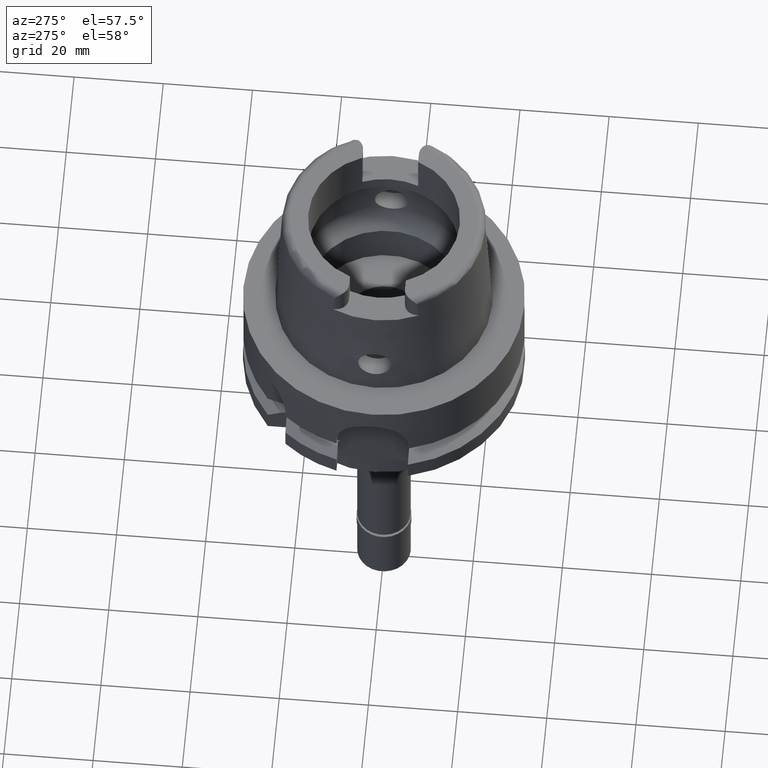
[diagram: clean part render]
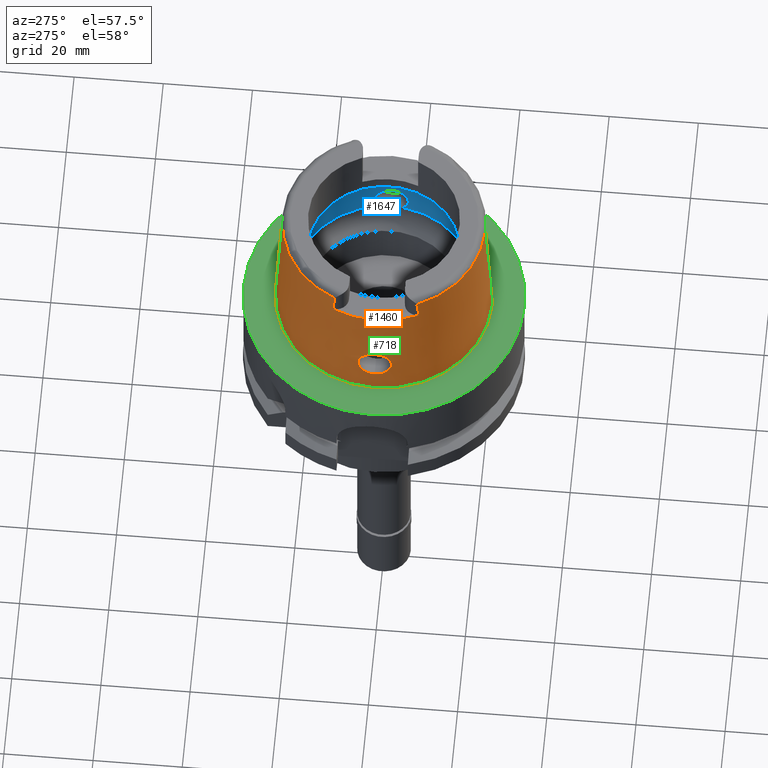
[diagram: same view with three faces highlighted in distinct colors, each labeled with its STEP entity id]
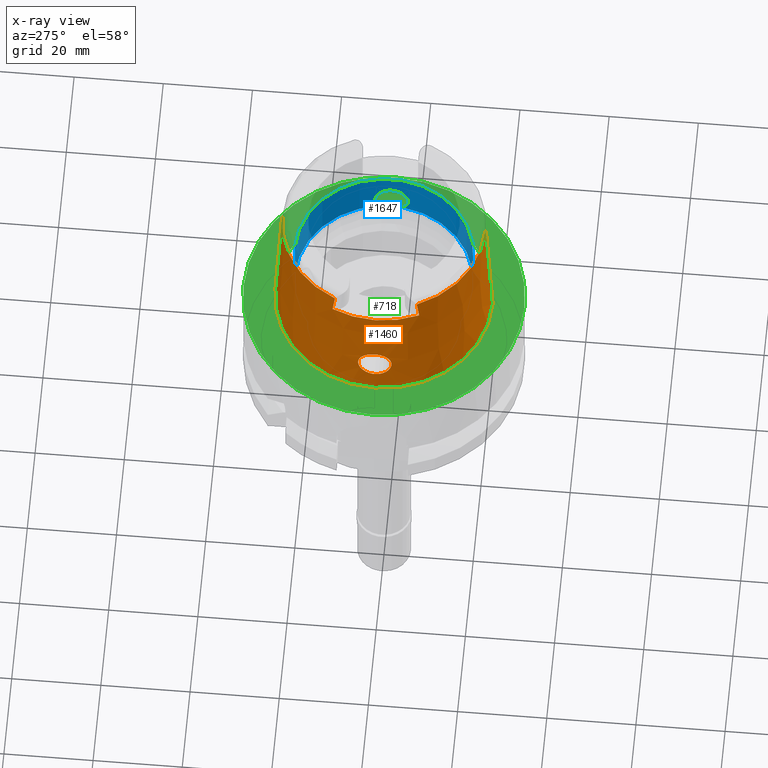
[diagram: x-ray of the same camera — body ghosted, the three highlighted faces saturated]
A machine part, auxiliary view with three faces highlighted in distinct colors.
The next image is the same camera in x-ray (body ghosted, the three faces saturated) — at least one of them is partly hidden behind the body in this view.
Their STEP definitions:

[orange] entity #1460 — the highlighted conical surface has half-angle 2.862 deg.
#15 = CARTESIAN_POINT ( 'NONE',  ( -23.75271649875262980, -3.178882622494953569, 7.007071754416051235 ) ) ;
#28 = FACE_OUTER_BOUND ( 'NONE', #3045, .T. ) ;
#60 = CARTESIAN_POINT ( 'NONE',  ( -23.57131677630555444, -3.749725007079726335, 8.946377467050307786 ) ) ;
#72 = CARTESIAN_POINT ( 'NONE',  ( -0.002484151076649000062, -22.79336396291000000, 30.43239979383999838 ) ) ;
#87 = CARTESIAN_POINT ( 'NONE',  ( -23.63967575691929923, -1.640546789802008298, 12.37312447946505500 ) ) ;
#114 = B_SPLINE_CURVE_WITH_KNOTS ( 'NONE', 3,
 ( #2681, #2222, #3911, #2653, #4353, #610, #2244, #3932, #1437, #1840, #3524, #3115, #4800, #2816, #3192, #4872, #4542, #4987, #4456, #4066, #1942, #1913, #3244, #253, #1995, #5408, #4963, #4040, #4930, #1105, #2392, #4481, #2755, #4092, #4514, #1187, #683, #1968, #336, #5303, #3685, #2844, #708, #787, #312, #2729, #3600, #367, #5350, #5379, #3656, #3277, #3629, #3309, #2335, #1512, #1593, #1561, #1621, #277, #2311, #764, #5328, #1534, #2422, #4123, #3216, #2024, #1152, #4430, #4900, #3713, #4012, #1128, #2785, #737, #2364, #1755, #842, #403, #3827, #2082, #2513, #2054, #1698, #1295, #869, #3391, #2106, #2955, #3415, #2866, #2931 ),
 .UNSPECIFIED., .F., .F.,
 ( 4, 2, 2, 1, 1, 1, 2, 2, 2, 2, 1, 1, 2, 2, 2, 1, 1, 2, 2, 2, 2, 1, 1, 1, 2, 2, 2, 2, 1, 2, 2, 2, 2, 1, 1, 1, 2, 2, 2, 2, 1, 1, 2, 2, 2, 1, 1, 2, 2, 2, 2, 1, 1, 1, 2, 2, 4 ),
 ( 0.0000000000000000000, 0.06250000000000731359, 0.09375000000001096345, 0.1093750000000127259, 0.1171875000000135031, 0.1210937500000139055, 0.1230468750000140998, 0.1250000000000142664, 0.1562500000000175970, 0.1718750000000191513, 0.1796875000000198175, 0.1835937500000200950, 0.1855468750000202338, 0.1875000000000203726, 0.2187500000000246192, 0.2343750000000265898, 0.2421875000000277556, 0.2460937500000281997, 0.2500000000000285882, 0.3125000000000340283, 0.3437500000000369149, 0.3593750000000383582, 0.3671875000000390243, 0.3710937500000393574, 0.3730468750000395239, 0.3750000000000396905, 0.4375000000000392464, 0.4687500000000388023, 0.4843750000000385803, 0.4921875000000387468, 0.5000000000000388578, 0.5625000000000424105, 0.5937500000000444089, 0.6093750000000451861, 0.6171875000000457412, 0.6210937500000459632, 0.6230468750000459632, 0.6250000000000459632, 0.6562500000000431877, 0.6718750000000418554, 0.6796875000000410783, 0.6835937500000408562, 0.6855468750000405231, 0.6875000000000401901, 0.7187500000000363043, 0.7343750000000343059, 0.7421875000000333067, 0.7460937500000327516, 0.7500000000000321965, 0.8125000000000226485, 0.8437500000000177636, 0.8593750000000153211, 0.8671875000000140998, 0.8710937500000135447, 0.8730468750000134337, 0.8750000000000133227, 1.000000000000000000 ),
 .UNSPECIFIED. ) ;
#202 = CARTESIAN_POINT ( 'NONE',  ( 0.0000000000000000000, 0.0000000000000000000, 26.00000000000000000 ) ) ;
#253 = CARTESIAN_POINT ( 'NONE',  ( -23.60608593087012608, 2.286597066141284440, 11.97474614694910677 ) ) ;
#277 = CARTESIAN_POINT ( 'NONE',  ( -23.68191438680150540, 3.475051656382814880, 7.590537591193768918 ) ) ;
#287 = CARTESIAN_POINT ( 'NONE',  ( -23.86626205603262818, -2.552776084607674356, 6.252657690147469083 ) ) ;
#300 = VERTEX_POINT ( 'NONE', #1866 ) ;
#312 = CARTESIAN_POINT ( 'NONE',  ( -23.54893034955832931, 3.720957382204576280, 9.481047861363990137 ) ) ;
#317 = CARTESIAN_POINT ( 'NONE',  ( -23.96237138325590266, -1.797033626240345461, 5.708055484391374890 ) ) ;
#336 = CARTESIAN_POINT ( 'NONE',  ( -23.53993802634269983, 3.455863299354316354, 10.45586886919575420 ) ) ;
#341 = CARTESIAN_POINT ( 'NONE',  ( -23.83840625631509624, -2.728019529906752005, 6.424025290122263421 ) ) ;
#348 = ORIENTED_EDGE ( 'NONE', *, *, #1750, .T. ) ;
#367 = CARTESIAN_POINT ( 'NONE',  ( -23.56263922647588060, 3.748100313236157444, 9.122984401225725293 ) ) ;
#373 = CARTESIAN_POINT ( 'NONE',  ( 0.0000000000000000000, 0.0000000000000000000, 30.43239979383999838 ) ) ;
#384 = B_SPLINE_CURVE_WITH_KNOTS ( 'NONE', 3,
 ( #3927, #4443, #1809, #4732 ),
 .UNSPECIFIED., .F., .F.,
 ( 4, 4 ),
 ( 0.0000000000000000000, 1.000000000000000000 ),
 .UNSPECIFIED. ) ;
#403 = CARTESIAN_POINT ( 'NONE',  ( -23.88277645787235670, 2.457004479624945059, 6.153120659141200655 ) ) ;
#409 = CARTESIAN_POINT ( 'NONE',  ( -23.63420283313325854, -3.637675456476909375, 8.056210905453200510 ) ) ;
#435 = CARTESIAN_POINT ( 'NONE',  ( -23.57815765933428409, -2.743201932923720943, 11.55725509245077731 ) ) ;
#498 = CARTESIAN_POINT ( 'NONE',  ( -23.54084231469584054, -3.656277190900311780, 9.842103161240823184 ) ) ;
#523 = CARTESIAN_POINT ( 'NONE',  ( -23.62274801634107391, -1.989716034697639246, 12.18083022161169282 ) ) ;
#550 = AXIS2_PLACEMENT_3D ( 'NONE', #202, #2732, #4432 ) ;
#610 = CARTESIAN_POINT ( 'NONE',  ( -23.65921503543091120, 1.129946291061730390, 12.57628079854242209 ) ) ;
#652 = VERTEX_POINT ( 'NONE', #2384 ) ;
#666 = EDGE_CURVE ( 'NONE', #3828, #5222, #3882, .T. ) ;
#683 = CARTESIAN_POINT ( 'NONE',  ( -23.54070526107432926, 3.429138922167620507, 10.51815876223671431 ) ) ;
#708 = CARTESIAN_POINT ( 'NONE',  ( -23.53848312545616039, 3.633204726379911431, 9.960128565135434542 ) ) ;
#714 = CARTESIAN_POINT ( 'NONE',  ( -23.88992228079224489, -2.392550152549585807, 6.111750137155390838 ) ) ;
#737 = CARTESIAN_POINT ( 'NONE',  ( -23.83745725767525414, 2.730878181249785541, 6.429694411086224193 ) ) ;
#745 = DIRECTION ( 'NONE',  ( 0.0000000000000000000, -1.000000000000000000, 0.0000000000000000000 ) ) ;
#764 = CARTESIAN_POINT ( 'NONE',  ( -23.69425830403843847, 3.429264908440908588, 7.478993167382545160 ) ) ;
#768 = CARTESIAN_POINT ( 'NONE',  ( -23.99874281242712470, -1.392648645723933765, 5.518150044375990326 ) ) ;
#774 = DIRECTION ( 'NONE',  ( 0.0000000000000000000, 1.000000000000000000, 0.0000000000000000000 ) ) ;
#787 = CARTESIAN_POINT ( 'NONE',  ( -23.54564729109382526, 3.703537863472409875, 9.600989313691028926 ) ) ;
#820 = CARTESIAN_POINT ( 'NONE',  ( -23.93378507945704925, -2.055046189300160808, 5.863226044967373873 ) ) ;
#842 = CARTESIAN_POINT ( 'NONE',  ( -23.84797676354205009, 2.667983411937318028, 6.364725162220019605 ) ) ;
#847 = CARTESIAN_POINT ( 'NONE',  ( -23.70836825227102906, -3.372634424744542336, 7.358439724445772434 ) ) ;
#869 = CARTESIAN_POINT ( 'NONE',  ( -23.99224149937913708, 1.473275722583577529, 5.551482136560391467 ) ) ;
#876 = CARTESIAN_POINT ( 'NONE',  ( -23.64687963687600458, -1.469572237821764604, 12.45021093584766092 ) ) ;
#900 = CARTESIAN_POINT ( 'NONE',  ( -20.86998041701999895, 9.160368181295998724, 30.43620438453000077 ) ) ;
#904 = CARTESIAN_POINT ( 'NONE',  ( -23.54162950234329088, -3.388279096717512928, 10.61919203893054409 ) ) ;
#933 = CARTESIAN_POINT ( 'NONE',  ( -23.61134330753656130, -2.189585887287681221, 12.04499218410015260 ) ) ;
#954 = CARTESIAN_POINT ( 'NONE',  ( -23.65773117235350753, -3.565473850469243811, 7.807593778809729379 ) ) ;
#959 = CARTESIAN_POINT ( 'NONE',  ( 0.0000000000000000000, -24.31503482328999866, -8.348877145181000479E-13 ) ) ;
#992 = CARTESIAN_POINT ( 'NONE',  ( -20.86998041701999895, 9.160368181295998724, 30.43620438453000077 ) ) ;
#996 = VERTEX_POINT ( 'NONE', #3266 ) ;
#1097 = B_SPLINE_CURVE_WITH_KNOTS ( 'NONE', 3,
 ( #1518, #1567, #1110, #4936, #3198, #5388, #5414, #1160, #2459, #768, #3315, #4074, #5334, #317, #2872, #4994, #3287, #1973, #4576, #820, #4969, #4462, #2371, #714, #3636, #2342, #287, #1541, #4488, #2824, #4521, #341, #1302, #3451, #1704, #4603, #2600, #15, #5436, #4715, #847, #4630, #1732, #4248, #954, #409, #5148, #2061, #1353, #4223, #2964, #60, #2997, #3365, #2088, #498, #2492, #4197, #2161, #3751, #3777, #1652, #5117, #5023, #904, #3338, #1326, #3030, #2576, #1677, #2546, #435, #3423, #2111, #5060, #4688, #2139, #4273, #1244, #5087, #933, #2907, #523, #3858, #1273, #87, #3396, #2934, #876, #2519, #4657, #1763 ),
 .UNSPECIFIED., .F., .F.,
 ( 4, 2, 2, 1, 1, 2, 2, 2, 2, 1, 1, 2, 2, 2, 2, 1, 1, 2, 2, 2, 2, 2, 2, 1, 2, 2, 2, 2, 1, 2, 2, 2, 2, 1, 1, 1, 2, 2, 2, 2, 2, 1, 1, 2, 2, 2, 2, 2, 2, 1, 2, 2, 4 ),
 ( 0.0000000000000000000, 0.06249999999999901468, 0.09374999999999852895, 0.1093749999999981959, 0.1171874999999980294, 0.1210937499999979045, 0.1249999999999977934, 0.1562499999999968636, 0.1718749999999963363, 0.1796874999999961975, 0.1835937499999962252, 0.1855468749999962530, 0.1874999999999962808, 0.2187499999999959199, 0.2343749999999957256, 0.2421874999999955591, 0.2460937499999956424, 0.2480468749999956424, 0.2499999999999956424, 0.2812499999999956146, 0.2968749999999955591, 0.3124999999999954481, 0.3437499999999954481, 0.3593749999999955591, 0.3671874999999955036, 0.3749999999999953926, 0.4374999999999954481, 0.4687499999999951705, 0.4843749999999950040, 0.4921874999999949485, 0.4999999999999948930, 0.5624999999999953371, 0.5937499999999955591, 0.6093749999999955591, 0.6171874999999955591, 0.6210937499999955591, 0.6230468749999955591, 0.6249999999999954481, 0.6874999999999881206, 0.7187499999999846789, 0.7343749999999829026, 0.7421874999999820144, 0.7460937499999816813, 0.7480468749999815703, 0.7499999999999814593, 0.7812499999999832356, 0.7968749999999843459, 0.8124999999999854561, 0.8437499999999877875, 0.8593749999999891198, 0.8671874999999896749, 0.8749999999999902300, 1.000000000000000000 ),
 .UNSPECIFIED. ) ;
#1105 = CARTESIAN_POINT ( 'NONE',  ( -23.58442557356728031, 2.642587259092124885, 11.66073881207936225 ) ) ;
#1110 = CARTESIAN_POINT ( 'NONE',  ( -24.04785089638647477, -0.4709048452987371625, 5.271751802897515660 ) ) ;
#1111 = EDGE_LOOP ( 'NONE', ( #4087, #1689 ) ) ;
#1128 = CARTESIAN_POINT ( 'NONE',  ( -23.81419107511943167, 2.864606967190712616, 6.579186969411240149 ) ) ;
#1152 = CARTESIAN_POINT ( 'NONE',  ( -23.76035813228541116, 3.142852042474883145, 6.954258488513135106 ) ) ;
#1160 = CARTESIAN_POINT ( 'NONE',  ( -24.00434942521088999, -1.319161821155087511, 5.489437340426846390 ) ) ;
#1178 = DIRECTION ( 'NONE',  ( -0.9156174466529973799, 0.4020506079893991225, 0.0000000000000000000 ) ) ;
#1187 = CARTESIAN_POINT ( 'NONE',  ( -23.54202911436889067, 3.389495675048942225, 10.60598604923514721 ) ) ;
#1232 = VERTEX_POINT ( 'NONE', #2565 ) ;
#1244 = CARTESIAN_POINT ( 'NONE',  ( -23.60282231831005362, -2.336336238666679499, 11.93390469152244115 ) ) ;
#1273 = CARTESIAN_POINT ( 'NONE',  ( -23.63588957459349160, -1.723551570150658740, 12.33101407868216626 ) ) ;
#1295 = CARTESIAN_POINT ( 'NONE',  ( -23.98860588324491161, 1.516759319374654691, 5.570243200990868893 ) ) ;
#1298 = CARTESIAN_POINT ( 'NONE',  ( -20.87000000000000099, 9.385803121562608098, 28.62353940569335009 ) ) ;
#1302 = CARTESIAN_POINT ( 'NONE',  ( -23.82423750658195871, -2.811376487817902614, 6.515266914707638080 ) ) ;
#1326 = CARTESIAN_POINT ( 'NONE',  ( -23.55720861380844866, -3.090776204992781828, 11.12709627958622072 ) ) ;
#1353 = CARTESIAN_POINT ( 'NONE',  ( -23.58466910641119441, -3.739696144484719209, 8.715997387690439524 ) ) ;
#1400 = CARTESIAN_POINT ( 'NONE',  ( 0.002484151076652000266, 22.79336396291000000, 30.43239979383999838 ) ) ;
#1411 = EDGE_CURVE ( 'NONE', #996, #1888, #4754, .T. ) ;
#1437 = CARTESIAN_POINT ( 'NONE',  ( -23.65033733337030242, 1.382311900821711736, 12.48599880202366741 ) ) ;
#1460 = ADVANCED_FACE ( 'NONE', ( #28, #4282 ), #4511, .T. ) ;
#1512 = CARTESIAN_POINT ( 'NONE',  ( -23.66072205122484107, 3.550429004970484748, 7.789890487783913464 ) ) ;
#1518 = CARTESIAN_POINT ( 'NONE',  ( -24.05252611746999847, 7.219293415727999012E-14, 5.250000000000000000 ) ) ;
#1534 = CARTESIAN_POINT ( 'NONE',  ( -23.72651505830365437, 3.296925417204575659, 7.212107131273609362 ) ) ;
#1541 = CARTESIAN_POINT ( 'NONE',  ( -23.85944572764263683, -2.596507396760212583, 6.294232208029381326 ) ) ;
#1546 = CARTESIAN_POINT ( 'NONE',  ( 0.0000000000000000000, 0.0000000000000000000, -1.534772309241999973E-12 ) ) ;
#1561 = CARTESIAN_POINT ( 'NONE',  ( -23.67772318265726028, 3.490410505361893012, 7.628865223536131168 ) ) ;
#1567 = CARTESIAN_POINT ( 'NONE',  ( -24.05252611747000202, -0.2328530991775683567, 5.249999999999996447 ) ) ;
#1593 = CARTESIAN_POINT ( 'NONE',  ( -23.67194768371611957, 3.511222110099463833, 7.682537935400348239 ) ) ;
#1621 = CARTESIAN_POINT ( 'NONE',  ( -23.68023325706679927, 3.481230152347519091, 7.605867681045560325 ) ) ;
#1652 = CARTESIAN_POINT ( 'NONE',  ( -23.53942262640137528, -3.476502138520435992, 10.40587873757411508 ) ) ;
#1677 = CARTESIAN_POINT ( 'NONE',  ( -23.57170940620293109, -2.848131144423408312, 11.44038702921787376 ) ) ;
#1689 = ORIENTED_EDGE ( 'NONE', *, *, #2008, .F. ) ;
#1698 = CARTESIAN_POINT ( 'NONE',  ( -23.98098753358466340, 1.604379437199070724, 5.609746666168613949 ) ) ;
#1704 = CARTESIAN_POINT ( 'NONE',  ( -23.79567430288091145, -2.967514793159313768, 6.706495036473427263 ) ) ;
#1732 = CARTESIAN_POINT ( 'NONE',  ( -23.69184256327779536, -3.437786402261809204, 7.501628162517948617 ) ) ;
#1750 = EDGE_CURVE ( 'NONE', #300, #1888, #2373, .T. ) ;
#1755 = CARTESIAN_POINT ( 'NONE',  ( -23.84643091849389762, 2.677292862273357166, 6.374197078993514509 ) ) ;
#1763 = CARTESIAN_POINT ( 'NONE',  ( -23.67751368057999883, 0.0000000000000000000, 12.75000000000000000 ) ) ;
#1809 = CARTESIAN_POINT ( 'NONE',  ( -20.87000000000000099, -9.342523104418118507, 28.99774287380602900 ) ) ;
#1840 = CARTESIAN_POINT ( 'NONE',  ( -23.64944384483764139, 1.405224240284970838, 12.47676757693871075 ) ) ;
#1866 = CARTESIAN_POINT ( 'NONE',  ( 0.0000000000000000000, 24.31503482328999866, -1.534772309241999973E-12 ) ) ;
#1888 = VERTEX_POINT ( 'NONE', #959 ) ;
#1913 = CARTESIAN_POINT ( 'NONE',  ( -23.61763684596080282, 2.079045085408067539, 12.12091824252397920 ) ) ;
#1942 = CARTESIAN_POINT ( 'NONE',  ( -23.61810287950100218, 2.070497701351620368, 12.12659859110253535 ) ) ;
#1968 = CARTESIAN_POINT ( 'NONE',  ( -23.54015191037064625, 3.447989320979770067, 10.47451322405974850 ) ) ;
#1973 = CARTESIAN_POINT ( 'NONE',  ( -23.93778881533148706, -2.021098279582545398, 5.841184005281576219 ) ) ;
#1995 = CARTESIAN_POINT ( 'NONE',  ( -23.59767336134157034, 2.429165160891614939, 11.85752372107897301 ) ) ;
#1998 = EDGE_CURVE ( 'NONE', #996, #4269, #3546, .T. ) ;
#2008 = EDGE_CURVE ( 'NONE', #652, #2639, #1097, .T. ) ;
#2024 = CARTESIAN_POINT ( 'NONE',  ( -23.75735510385786498, 3.157153808143433160, 6.976287298997460695 ) ) ;
#2031 = DIRECTION ( 'NONE',  ( 0.0000000000000000000, 0.0000000000000000000, -1.000000000000000000 ) ) ;
#2042 = AXIS2_PLACEMENT_3D ( 'NONE', #1546, #2346, #774 ) ;
#2054 = CARTESIAN_POINT ( 'NONE',  ( -23.97386246120431252, 1.680484946744803310, 5.647122889499851972 ) ) ;
#2061 = CARTESIAN_POINT ( 'NONE',  ( -23.59624767837293291, -3.723507909982509467, 8.539643842456975165 ) ) ;
#2082 = CARTESIAN_POINT ( 'NONE',  ( -23.94773198639306599, 1.937156626750008437, 5.786713526553815434 ) ) ;
#2088 = CARTESIAN_POINT ( 'NONE',  ( -23.54801636246630636, -3.727011815661650296, 9.481544857097494727 ) ) ;
#2106 = CARTESIAN_POINT ( 'NONE',  ( -23.99476811809815047, 1.442355273368521207, 5.538474882024878809 ) ) ;
#2110 = AXIS2_PLACEMENT_3D ( 'NONE', #3677, #3264, #1178 ) ;
#2111 = CARTESIAN_POINT ( 'NONE',  ( -23.58199175904896450, -2.681286609271599453, 11.62169471965049716 ) ) ;
#2139 = CARTESIAN_POINT ( 'NONE',  ( -23.58894684925639140, -2.569306570987505811, 11.73426750346264669 ) ) ;
#2161 = CARTESIAN_POINT ( 'NONE',  ( -23.53836946821303044, -3.543627727400155081, 10.22966704396721305 ) ) ;
#2207 = EDGE_CURVE ( 'NONE', #2639, #652, #114, .T. ) ;
#2222 = CARTESIAN_POINT ( 'NONE',  ( -23.67751368058000239, 0.2267574786005841780, 12.75000000000000178 ) ) ;
#2244 = CARTESIAN_POINT ( 'NONE',  ( -23.65624150559419192, 1.221743538389754802, 12.54644022298621309 ) ) ;
#2311 = CARTESIAN_POINT ( 'NONE',  ( -23.68294143877189128, 3.471255696774159905, 7.581223713313391954 ) ) ;
#2335 = CARTESIAN_POINT ( 'NONE',  ( -23.65165784975975072, 3.579964827486629808, 7.881784108025626345 ) ) ;
#2342 = CARTESIAN_POINT ( 'NONE',  ( -23.87190571525566085, -2.515512974465031970, 6.218671799674688749 ) ) ;
#2346 = DIRECTION ( 'NONE',  ( 0.0000000000000000000, 0.0000000000000000000, 1.000000000000000000 ) ) ;
#2360 = EDGE_CURVE ( 'NONE', #1232, #4269, #384, .T. ) ;
#2364 = CARTESIAN_POINT ( 'NONE',  ( -23.84284047657683203, 2.698808894878239606, 6.396316340399214262 ) ) ;
#2371 = CARTESIAN_POINT ( 'NONE',  ( -23.90984481143927098, -2.248532336673444210, 5.996379461103382269 ) ) ;
#2373 = CIRCLE ( 'NONE', #2042, 24.31503482328999866 ) ;
#2377 = EDGE_CURVE ( 'NONE', #5222, #300, #4321, .T. ) ;
#2384 = CARTESIAN_POINT ( 'NONE',  ( -24.05252611746999847, 7.219293415727999012E-14, 5.250000000000000000 ) ) ;
#2392 = CARTESIAN_POINT ( 'NONE',  ( -23.57101470314691127, 2.850008581006196362, 11.45282567291337905 ) ) ;
#2422 = CARTESIAN_POINT ( 'NONE',  ( -23.73359965320568676, 3.266080570358841140, 7.156199707154434542 ) ) ;
#2459 = CARTESIAN_POINT ( 'NONE',  ( -24.00100737263946371, -1.363275615910473748, 5.506544839420500104 ) ) ;
#2492 = CARTESIAN_POINT ( 'NONE',  ( -23.53935292945635993, -3.626623976789958625, 9.962062670086847760 ) ) ;
#2513 = CARTESIAN_POINT ( 'NONE',  ( -23.95881890526247915, 1.833686935429214238, 5.726874502827158153 ) ) ;
#2519 = CARTESIAN_POINT ( 'NONE',  ( -23.66771078659471073, -0.9493669585983759429, 12.66637515358830868 ) ) ;
#2528 = VERTEX_POINT ( 'NONE', #5342 ) ;
#2546 = CARTESIAN_POINT ( 'NONE',  ( -23.57596613929120721, -2.778774388107127624, 11.51835717622664390 ) ) ;
#2565 = CARTESIAN_POINT ( 'NONE',  ( -20.86999936645999654, -9.702216346612999587, 26.00000000000000000 ) ) ;
#2574 = CARTESIAN_POINT ( 'NONE',  ( -20.87000000000000099, 9.566413837483608518, 27.14480461085001650 ) ) ;
#2576 = CARTESIAN_POINT ( 'NONE',  ( -23.56903999347467149, -2.891983977591912947, 11.38817587624874506 ) ) ;
#2600 = CARTESIAN_POINT ( 'NONE',  ( -23.77393222566888653, -3.077867948690728550, 6.856902167344196108 ) ) ;
#2639 = VERTEX_POINT ( 'NONE', #2942 ) ;
#2653 = CARTESIAN_POINT ( 'NONE',  ( -23.66775440316715517, 0.8248702153521910718, 12.66021371279236085 ) ) ;
#2681 = CARTESIAN_POINT ( 'NONE',  ( -23.67751368057999883, 0.0000000000000000000, 12.75000000000000000 ) ) ;
#2729 = CARTESIAN_POINT ( 'NONE',  ( -23.55519744213301081, 3.738326954816526992, 9.301694050601909680 ) ) ;
#2732 = DIRECTION ( 'NONE',  ( 0.0000000000000000000, 0.0000000000000000000, -1.000000000000000000 ) ) ;
#2755 = CARTESIAN_POINT ( 'NONE',  ( -23.55004845356625154, 3.212770625696434568, 10.93795318111248704 ) ) ;
#2785 = CARTESIAN_POINT ( 'NONE',  ( -23.82491352138987040, 2.804256079633542953, 6.508953033257858678 ) ) ;
#2816 = CARTESIAN_POINT ( 'NONE',  ( -23.64000576765945283, 1.632451477269102780, 12.37827351315916857 ) ) ;
#2821 = VECTOR ( 'NONE', #4725, 999.9999999999998863 ) ;
#2824 = CARTESIAN_POINT ( 'NONE',  ( -23.85448299288694685, -2.627824369751838862, 6.324721347025038298 ) ) ;
#2844 = CARTESIAN_POINT ( 'NONE',  ( -23.53728702803887174, 3.562145524763103310, 10.19867652590188456 ) ) ;
#2866 = CARTESIAN_POINT ( 'NONE',  ( -24.05252611747000913, 0.4680681639317798015, 5.250000000000009770 ) ) ;
#2872 = CARTESIAN_POINT ( 'NONE',  ( -23.95673048497029356, -1.851298313905354265, 5.738225475768873096 ) ) ;
#2907 = CARTESIAN_POINT ( 'NONE',  ( -23.61430740085657831, -2.137916556229719323, 12.08145266034733112 ) ) ;
#2931 = CARTESIAN_POINT ( 'NONE',  ( -24.05252611746999847, 7.219293415727999012E-14, 5.250000000000000000 ) ) ;
#2934 = CARTESIAN_POINT ( 'NONE',  ( -23.64574005639298804, -1.497396058784082662, 12.43821159125325515 ) ) ;
#2942 = CARTESIAN_POINT ( 'NONE',  ( -23.67751368057999883, 0.0000000000000000000, 12.75000000000000000 ) ) ;
#2955 = CARTESIAN_POINT ( 'NONE',  ( -23.99517011067704786, 1.437389627832612815, 5.536407274288841940 ) ) ;
#2964 = CARTESIAN_POINT ( 'NONE',  ( -23.57441783998612550, -3.748476067444964421, 8.889364668612014242 ) ) ;
#2997 = CARTESIAN_POINT ( 'NONE',  ( -23.56990512903320223, -3.750021849346457881, 8.973226419335910364 ) ) ;
#3010 = CARTESIAN_POINT ( 'NONE',  ( 0.0000000000000000000, 0.0000000000000000000, 15.21619989691999919 ) ) ;
#3030 = CARTESIAN_POINT ( 'NONE',  ( -23.56153698328157020, -3.016721148847554268, 11.23152747692587283 ) ) ;
#3044 = DIRECTION ( 'NONE',  ( 0.0000000000000000000, 0.0000000000000000000, -1.000000000000000000 ) ) ;
#3045 = EDGE_LOOP ( 'NONE', ( #3056, #4561, #3724, #348, #3926, #4320, #5320, #4794 ) ) ;
#3056 = ORIENTED_EDGE ( 'NONE', *, *, #4560, .F. ) ;
#3115 = CARTESIAN_POINT ( 'NONE',  ( -23.64847130701088673, 1.429869335712133038, 12.46670078977636997 ) ) ;
#3192 = CARTESIAN_POINT ( 'NONE',  ( -23.63226854981181191, 1.795856360593044654, 12.29259508153602098 ) ) ;
#3198 = CARTESIAN_POINT ( 'NONE',  ( -24.02798120678150084, -0.9484159884540244168, 5.369792514895221025 ) ) ;
#3216 = CARTESIAN_POINT ( 'NONE',  ( -23.75046347264000346, 3.189567739290246617, 7.027381454835186503 ) ) ;
#3244 = CARTESIAN_POINT ( 'NONE',  ( -23.61168907279228080, 2.187702322948616107, 12.04821248075677431 ) ) ;
#3264 = DIRECTION ( 'NONE',  ( 0.0000000000000000000, 0.0000000000000000000, -1.000000000000000000 ) ) ;
#3266 = CARTESIAN_POINT ( 'NONE',  ( 0.0000000000000000000, -22.79336436900999985, 30.43239979383999838 ) ) ;
#3277 = CARTESIAN_POINT ( 'NONE',  ( -23.59485503920589977, 3.730518256955907219, 8.546757929606542348 ) ) ;
#3287 = CARTESIAN_POINT ( 'NONE',  ( -23.94328768525837958, -1.973549718767377836, 5.811049987822235252 ) ) ;
#3288 = AXIS2_PLACEMENT_3D ( 'NONE', #373, #2031, #745 ) ;
#3309 = CARTESIAN_POINT ( 'NONE',  ( -23.63427313915191164, 3.633817449784318310, 8.065071911821739548 ) ) ;
#3315 = CARTESIAN_POINT ( 'NONE',  ( -23.99747617543468792, -1.408772115173502648, 5.524649019347367407 ) ) ;
#3338 = CARTESIAN_POINT ( 'NONE',  ( -23.54624441735588292, -3.288685481133776456, 10.81845877987276872 ) ) ;
#3365 = CARTESIAN_POINT ( 'NONE',  ( -23.55640691704930134, -3.749815092895979252, 9.240314921973734386 ) ) ;
#3377 = VECTOR ( 'NONE', #3468, 999.9999999999998863 ) ;
#3391 = CARTESIAN_POINT ( 'NONE',  ( -23.99376242943044346, 1.454713418171989403, 5.543650227772511485 ) ) ;
#3396 = CARTESIAN_POINT ( 'NONE',  ( -23.64333170162018050, -1.554990374051729241, 12.41255019592339970 ) ) ;
#3415 = CARTESIAN_POINT ( 'NONE',  ( -24.03360454821871528, 0.9585203075151128571, 5.338868596594223526 ) ) ;
#3423 = CARTESIAN_POINT ( 'NONE',  ( -23.58082495134108214, -2.700103139634695282, 11.60240386443073035 ) ) ;
#3428 = CIRCLE ( 'NONE', #550, 23.01499170873999134 ) ;
#3451 = CARTESIAN_POINT ( 'NONE',  ( -23.80283391249240310, -2.929361064554514282, 6.657959688898906769 ) ) ;
#3461 = DIRECTION ( 'NONE',  ( 0.0000000000000000000, -1.000000000000000000, 0.0000000000000000000 ) ) ;
#3468 = DIRECTION ( 'NONE',  ( -8.152664593145339002E-05, 0.04993928212514209264, -0.9987522522899417998 ) ) ;
#3524 = CARTESIAN_POINT ( 'NONE',  ( -23.64884342054367394, 1.420495663713146506, 12.47055615412124929 ) ) ;
#3546 = CIRCLE ( 'NONE', #3288, 22.79336436900999985 ) ;
#3600 = CARTESIAN_POINT ( 'NONE',  ( -23.55866661463982936, 3.744823189101077254, 9.212155705408170192 ) ) ;
#3629 = CARTESIAN_POINT ( 'NONE',  ( -23.62367492184308659, 3.662756618566388234, 8.186588872025909680 ) ) ;
#3636 = CARTESIAN_POINT ( 'NONE',  ( -23.88292782307721751, -2.441401755783917160, 6.152821432125795909 ) ) ;
#3656 = CARTESIAN_POINT ( 'NONE',  ( -23.57960814316679077, 3.750262211792642297, 8.780894792376455982 ) ) ;
#3677 = CARTESIAN_POINT ( 'NONE',  ( 0.0000000000000000000, 0.0000000000000000000, 30.43239979383999838 ) ) ;
#3685 = CARTESIAN_POINT ( 'NONE',  ( -23.53974544099158095, 3.463206008973542804, 10.43832050119876342 ) ) ;
#3713 = CARTESIAN_POINT ( 'NONE',  ( -23.77856689830507975, 3.055154358978627638, 6.821980930974344659 ) ) ;
#3724 = ORIENTED_EDGE ( 'NONE', *, *, #2377, .T. ) ;
#3751 = CARTESIAN_POINT ( 'NONE',  ( -23.53884199778761754, -3.505452944419704675, 10.33267812373063244 ) ) ;
#3777 = CARTESIAN_POINT ( 'NONE',  ( -23.53922624104651362, -3.485341141888350869, 10.38395500020130591 ) ) ;
#3827 = CARTESIAN_POINT ( 'NONE',  ( -23.91129758506029646, 2.248322633268533099, 5.988573699273521456 ) ) ;
#3828 = VERTEX_POINT ( 'NONE', #992 ) ;
#3858 = CARTESIAN_POINT ( 'NONE',  ( -23.62814355977530667, -1.886057481986083140, 12.24352068037722319 ) ) ;
#3882 = CIRCLE ( 'NONE', #2110, 22.79336436900998919 ) ;
#3911 = CARTESIAN_POINT ( 'NONE',  ( -23.67507386122678881, 0.4630800184043237788, 12.72939111364151898 ) ) ;
#3926 = ORIENTED_EDGE ( 'NONE', *, *, #1411, .F. ) ;
#3927 = CARTESIAN_POINT ( 'NONE',  ( -20.86999936645999654, -9.702216346612999587, 26.00000000000000000 ) ) ;
#3932 = CARTESIAN_POINT ( 'NONE',  ( -23.65237210458870010, 1.328818249067490909, 12.50693909487256050 ) ) ;
#4012 = CARTESIAN_POINT ( 'NONE',  ( -23.79278528616313437, 2.981769001603642444, 6.722547729751675583 ) ) ;
#4040 = CARTESIAN_POINT ( 'NONE',  ( -23.58644571724280325, 2.611002750011263362, 11.69172829500811162 ) ) ;
#4066 = CARTESIAN_POINT ( 'NONE',  ( -23.61891063279415093, 2.055608076010445373, 12.13640796438016878 ) ) ;
#4069 = AXIS2_PLACEMENT_3D ( 'NONE', #3010, #3044, #3461 ) ;
#4074 = CARTESIAN_POINT ( 'NONE',  ( -23.98800177673199485, -1.527516860212351668, 5.573310028695305895 ) ) ;
#4087 = ORIENTED_EDGE ( 'NONE', *, *, #2207, .F. ) ;
#4092 = CARTESIAN_POINT ( 'NONE',  ( -23.54704643686005383, 3.272385054530787318, 10.83499652405516045 ) ) ;
#4123 = CARTESIAN_POINT ( 'NONE',  ( -23.74475424893287823, 3.215749375961141521, 7.070608540498128924 ) ) ;
#4197 = CARTESIAN_POINT ( 'NONE',  ( -23.53847179762314568, -3.572842404417216677, 10.14068561214246422 ) ) ;
#4223 = CARTESIAN_POINT ( 'NONE',  ( -23.57925905058365501, -3.745616340133218536, 8.803365802741831558 ) ) ;
#4248 = CARTESIAN_POINT ( 'NONE',  ( -23.68875131581636140, -3.449603174239145975, 7.528992880325147574 ) ) ;
#4269 = VERTEX_POINT ( 'NONE', #5036 ) ;
#4273 = CARTESIAN_POINT ( 'NONE',  ( -23.59443356407970072, -2.478417113084503853, 11.81691385202814182 ) ) ;
#4282 = FACE_BOUND ( 'NONE', #1111, .T. ) ;
#4320 = ORIENTED_EDGE ( 'NONE', *, *, #1998, .T. ) ;
#4321 = LINE ( 'NONE', #1400, #3377 ) ;
#4353 = CARTESIAN_POINT ( 'NONE',  ( -23.66470462897564175, 0.9466540281440142257, 12.63078476831500829 ) ) ;
#4375 = EDGE_CURVE ( 'NONE', #1232, #2528, #3428, .T. ) ;
#4404 = B_SPLINE_CURVE_WITH_KNOTS ( 'NONE', 3,
 ( #900, #1298, #2574, #4714 ),
 .UNSPECIFIED., .F., .F.,
 ( 4, 4 ),
 ( 0.0000000000000000000, 1.000000000000000000 ),
 .UNSPECIFIED. ) ;
#4430 = CARTESIAN_POINT ( 'NONE',  ( -23.76237114505741488, 3.133225335229214092, 6.939544639797580849 ) ) ;
#4432 = DIRECTION ( 'NONE',  ( -0.9068002397791221636, -0.4215605829967106200, 0.0000000000000000000 ) ) ;
#4443 = CARTESIAN_POINT ( 'NONE',  ( -20.87000000000000099, -9.521895181310785716, 27.52027613207269496 ) ) ;
#4456 = CARTESIAN_POINT ( 'NONE',  ( -23.62011411347692302, 2.033323670083479584, 12.15097484554983254 ) ) ;
#4462 = CARTESIAN_POINT ( 'NONE',  ( -23.92171204187318523, -2.155938832282988660, 5.929920641269171178 ) ) ;
#4481 = CARTESIAN_POINT ( 'NONE',  ( -23.56103989236807550, 3.012420552616019265, 11.24678724321285728 ) ) ;
#4488 = CARTESIAN_POINT ( 'NONE',  ( -23.85647471705482303, -2.615292625707216434, 6.312469298548083252 ) ) ;
#4511 = CONICAL_SURFACE ( 'NONE', #4069, 23.55419959615000280, 0.04996004983832824653 ) ;
#4514 = CARTESIAN_POINT ( 'NONE',  ( -23.54353610614234071, 3.352078703236665014, 10.68207384332851007 ) ) ;
#4521 = CARTESIAN_POINT ( 'NONE',  ( -23.85335397035126803, -2.634889588604375721, 6.331682857584077340 ) ) ;
#4542 = CARTESIAN_POINT ( 'NONE',  ( -23.62512546501159960, 1.938105462459444261, 12.21050786322688353 ) ) ;
#4560 = EDGE_CURVE ( 'NONE', #3828, #2528, #4404, .T. ) ;
#4561 = ORIENTED_EDGE ( 'NONE', *, *, #666, .T. ) ;
#4576 = CARTESIAN_POINT ( 'NONE',  ( -23.93539193651088937, -2.041468435096873701, 5.854372508762161864 ) ) ;
#4603 = CARTESIAN_POINT ( 'NONE',  ( -23.78130492716131528, -3.041380345866794066, 6.805389634327863924 ) ) ;
#4630 = CARTESIAN_POINT ( 'NONE',  ( -23.69843216872398273, -3.412113822803807039, 7.444052452308649315 ) ) ;
#4657 = CARTESIAN_POINT ( 'NONE',  ( -23.67751368057999883, -0.4543763340422714569, 12.74999999999999822 ) ) ;
#4688 = CARTESIAN_POINT ( 'NONE',  ( -23.58322961450335953, -2.661341484074970953, 11.64193495640540554 ) ) ;
#4714 = CARTESIAN_POINT ( 'NONE',  ( -20.87000000000000099, 9.702213322400000450, 26.00000000000000000 ) ) ;
#4715 = CARTESIAN_POINT ( 'NONE',  ( -23.71845936195141746, -3.330340530997122794, 7.275134560678867324 ) ) ;
#4725 = DIRECTION ( 'NONE',  ( 8.152664593134339771E-05, -0.04993928212514209264, -0.9987522522899417998 ) ) ;
#4732 = CARTESIAN_POINT ( 'NONE',  ( -20.86999741140000353, -9.164100115935001512, 30.43240022519999854 ) ) ;
#4754 = LINE ( 'NONE', #72, #2821 ) ;
#4794 = ORIENTED_EDGE ( 'NONE', *, *, #4375, .T. ) ;
#4800 = CARTESIAN_POINT ( 'NONE',  ( -23.64446850963071967, 1.530038650598233074, 12.42518562817344474 ) ) ;
#4872 = CARTESIAN_POINT ( 'NONE',  ( -23.62951562638080105, 1.851945453865983637, 12.26148005202121816 ) ) ;
#4900 = CARTESIAN_POINT ( 'NONE',  ( -23.76351525795076824, 3.127728889807473767, 6.931214969009461768 ) ) ;
#4930 = CARTESIAN_POINT ( 'NONE',  ( -23.58504133079981813, 2.632995294428731370, 11.67021953296537262 ) ) ;
#4933 = CARTESIAN_POINT ( 'NONE',  ( 0.002484151076652000266, 22.79336396291000000, 30.43239979383999838 ) ) ;
#4936 = CARTESIAN_POINT ( 'NONE',  ( -24.03382523313590369, -0.8289318722965653974, 5.340745506360364381 ) ) ;
#4963 = CARTESIAN_POINT ( 'NONE',  ( -23.58855205138709010, 2.577815440188057750, 11.72378848055121914 ) ) ;
#4969 = CARTESIAN_POINT ( 'NONE',  ( -23.93281811400366621, -2.063162689295900964, 5.868562226690054118 ) ) ;
#4987 = CARTESIAN_POINT ( 'NONE',  ( -23.62286519027133025, 1.981690898732322514, 12.18394672543163892 ) ) ;
#4994 = CARTESIAN_POINT ( 'NONE',  ( -23.94784012121657568, -1.932784587812795385, 5.786304563184104133 ) ) ;
#5023 = CARTESIAN_POINT ( 'NONE',  ( -23.53964912519093033, -3.466929244591752113, 10.42931466101687121 ) ) ;
#5036 = CARTESIAN_POINT ( 'NONE',  ( -20.86999741140000353, -9.164100115935001512, 30.43240022519999854 ) ) ;
#5060 = CARTESIAN_POINT ( 'NONE',  ( -23.58277489364579793, -2.668665095526785880, 11.63454126785281062 ) ) ;
#5087 = CARTESIAN_POINT ( 'NONE',  ( -23.60564501671940363, -2.288018782735310896, 11.97173918924437430 ) ) ;
#5117 = CARTESIAN_POINT ( 'NONE',  ( -23.53956059656517397, -3.470560644332559619, 10.42048264963361426 ) ) ;
#5148 = CARTESIAN_POINT ( 'NONE',  ( -23.60497800675634750, -3.706915940436275037, 8.419910044950400518 ) ) ;
#5222 = VERTEX_POINT ( 'NONE', #4933 ) ;
#5303 = CARTESIAN_POINT ( 'NONE',  ( -23.53980060727377577, 3.461067490052551321, 10.44345319890142676 ) ) ;
#5320 = ORIENTED_EDGE ( 'NONE', *, *, #2360, .F. ) ;
#5328 = CARTESIAN_POINT ( 'NONE',  ( -23.70631668034588202, 3.382161452231489562, 7.375624311420416745 ) ) ;
#5334 = CARTESIAN_POINT ( 'NONE',  ( -23.97843604546207175, -1.634837490254768211, 5.622912412863067644 ) ) ;
#5342 = CARTESIAN_POINT ( 'NONE',  ( -20.87000000000000099, 9.702213322400000450, 26.00000000000000000 ) ) ;
#5350 = CARTESIAN_POINT ( 'NONE',  ( -23.56539950977307285, 3.749577530167134132, 9.063635416959138880 ) ) ;
#5379 = CARTESIAN_POINT ( 'NONE',  ( -23.56691753905665365, 3.749964262851427588, 9.032386218805443789 ) ) ;
#5388 = CARTESIAN_POINT ( 'NONE',  ( -24.01746195934357431, -1.126857228738403993, 5.422774454405132616 ) ) ;
#5408 = CARTESIAN_POINT ( 'NONE',  ( -23.59346511241596289, 2.499006513035741950, 11.79715788958193201 ) ) ;
#5414 = CARTESIAN_POINT ( 'NONE',  ( -24.01176403364803136, -1.215880196834278282, 5.451616748631738396 ) ) ;
#5436 = CARTESIAN_POINT ( 'NONE',  ( -23.73884828282325898, -3.242259816196494615, 7.111729196078007575 ) ) ;

[blue] entity #1647 — the highlighted cylindrical surface (partial cylindrical patch) has radius 20 mm, axis along (0, 0, 1).
#59 = B_SPLINE_CURVE_WITH_KNOTS ( 'NONE', 3,
 ( #5126, #3382, #2172, #2529, #4233, #510, #3819, #1717, #3407, #1314, #4670, #1337, #4701, #1803, #4807, #1015, #3225, #3994, #4080, #773, #719, #4439, #3174, #1545, #2403, #350, #3203, #4911, #3612, #1606, #3669, #4467, #3294, #4885, #238, #2741, #1896, #1113, #3583, #3641, #323, #4338, #3585, #964, #5265, #3943, #3071, #2613, #1826, #989, #3510, #4387, #4784, #5216, #3537, #1448 ),
 .UNSPECIFIED., .F., .F.,
 ( 4, 2, 2, 2, 1, 1, 1, 2, 2, 2, 2, 1, 2, 2, 2, 2, 2, 1, 1, 2, 2, 2, 2, 1, 1, 2, 2, 2, 2, 2, 2, 4 ),
 ( 0.0000000000000000000, 0.06249999999998331890, 0.09374999999997481182, 0.1093749999999707317, 0.1171874999999686640, 0.1210937499999679839, 0.1230468749999678174, 0.1240234374999676092, 0.1249999999999674150, 0.1874999999999658884, 0.2187499999999651390, 0.2343749999999646394, 0.2421874999999643896, 0.2499999999999641398, 0.3749999999999619749, 0.4374999999999605871, 0.4687499999999598654, 0.4843749999999595324, 0.4921874999999596434, 0.4960937499999596989, 0.4999999999999598099, 0.5624999999999671374, 0.5937499999999706901, 0.6093749999999723554, 0.6171874999999731326, 0.6210937499999735767, 0.6249999999999739098, 0.6874999999999786837, 0.7187499999999810152, 0.7499999999999833467, 0.8749999999999916733, 1.000000000000000000 ),
 .UNSPECIFIED. ) ;
#68 = CIRCLE ( 'NONE', #4207, 20.00000000000000000 ) ;
#102 = VERTEX_POINT ( 'NONE', #3496 ) ;
#175 = CARTESIAN_POINT ( 'NONE',  ( 19.97343365535988724, 1.030605565332621598, 12.60574053777581227 ) ) ;
#201 = CARTESIAN_POINT ( 'NONE',  ( 19.86948760216283461, 2.286606066578645624, 11.97828177686676376 ) ) ;
#238 = CARTESIAN_POINT ( 'NONE',  ( 19.68896840675985871, -3.513627443639933290, 10.31035065183765376 ) ) ;
#254 = CARTESIAN_POINT ( 'NONE',  ( 19.89088616127082432, 2.086400840227770725, 12.11602376180932339 ) ) ;
#268 = VECTOR ( 'NONE', #1462, 1000.000000000000000 ) ;
#279 = CARTESIAN_POINT ( 'NONE',  ( 19.65280998380582034, 3.712001051506844895, 8.459578953802486367 ) ) ;
#321 = EDGE_CURVE ( 'NONE', #3902, #1045, #3959, .T. ) ;
#323 = CARTESIAN_POINT ( 'NONE',  ( 19.76320379498669055, -3.069226508458656966, 11.15578107801588992 ) ) ;
#350 = CARTESIAN_POINT ( 'NONE',  ( 19.64936642803245093, -3.733966990938729857, 9.394120084840073659 ) ) ;
#351 = FACE_OUTER_BOUND ( 'NONE', #4171, .T. ) ;
#352 = CARTESIAN_POINT ( 'NONE',  ( 0.0000000000000000000, -20.00000000000000000, 17.26397459622000241 ) ) ;
#428 = EDGE_CURVE ( 'NONE', #578, #3902, #3258, .T. ) ;
#430 = ORIENTED_EDGE ( 'NONE', *, *, #321, .T. ) ;
#510 = CARTESIAN_POINT ( 'NONE',  ( 19.75179332923853437, -3.142514060894000760, 6.953488477360522779 ) ) ;
#578 = VERTEX_POINT ( 'NONE', #4147 ) ;
#611 = CARTESIAN_POINT ( 'NONE',  ( 19.99742191651710144, 0.3686836949622917525, 12.73656738284229206 ) ) ;
#616 = DIRECTION ( 'NONE',  ( 0.0000000000000000000, -1.000000000000000000, 0.0000000000000000000 ) ) ;
#644 = DIRECTION ( 'NONE',  ( 0.9922879323327794543, -0.1239542631244973381, 0.0000000000000000000 ) ) ;
#684 = CARTESIAN_POINT ( 'NONE',  ( 19.97159072849517258, 1.065238359242981492, 12.59554061274985415 ) ) ;
#693 = EDGE_CURVE ( 'NONE', #578, #4119, #59, .T. ) ;
#704 = DIRECTION ( 'NONE',  ( 0.0000000000000000000, -8.659189811027998955E-14, 1.000000000000000000 ) ) ;
#719 = CARTESIAN_POINT ( 'NONE',  ( 19.66975297031104120, -3.619540562786809357, 8.019244651380851963 ) ) ;
#773 = CARTESIAN_POINT ( 'NONE',  ( 19.67290404962309580, -3.602503690132809133, 7.957054125592839533 ) ) ;
#789 = CARTESIAN_POINT ( 'NONE',  ( 19.79427832958422329, 2.868218242075990077, 6.576807484929085845 ) ) ;
#816 = CARTESIAN_POINT ( 'NONE',  ( 19.65702809237348703, 3.688709322896908116, 8.323205932676918550 ) ) ;
#964 = CARTESIAN_POINT ( 'NONE',  ( 19.77796600152362672, -2.972004823491213976, 11.28689239664166344 ) ) ;
#978 = CARTESIAN_POINT ( 'NONE',  ( 19.64540351864649992, 3.754670919171451793, 9.015718733044431943 ) ) ;
#989 = CARTESIAN_POINT ( 'NONE',  ( 19.86872320101724654, -2.281870014728415441, 11.97735048448829609 ) ) ;
#1007 = CARTESIAN_POINT ( 'NONE',  ( 19.88731923470223606, 2.120157174275757672, 12.09314970190940208 ) ) ;
#1015 = CARTESIAN_POINT ( 'NONE',  ( 19.70835316617235122, -3.404849394531791695, 7.417211650212289342 ) ) ;
#1045 = VERTEX_POINT ( 'NONE', #352 ) ;
#1055 = EDGE_CURVE ( 'NONE', #5273, #102, #4154, .T. ) ;
#1079 = CARTESIAN_POINT ( 'NONE',  ( 19.98066437387830874, 0.8800670642443439995, 12.64557963909735072 ) ) ;
#1113 = CARTESIAN_POINT ( 'NONE',  ( 19.73469640354722898, -3.248422034680776171, 10.87596890987004983 ) ) ;
#1182 = LINE ( 'NONE', #2862, #4111 ) ;
#1188 = CARTESIAN_POINT ( 'NONE',  ( 19.70222036075197991, 3.439531255562970458, 7.502991165462007395 ) ) ;
#1212 = CARTESIAN_POINT ( 'NONE',  ( 19.70912693480267919, 3.399756527184708776, 7.414412884044232932 ) ) ;
#1267 = AXIS2_PLACEMENT_3D ( 'NONE', #3727, #5365, #4104 ) ;
#1314 = CARTESIAN_POINT ( 'NONE',  ( 19.74253935612695088, -3.198926868808675827, 7.043111348790577431 ) ) ;
#1337 = CARTESIAN_POINT ( 'NONE',  ( 19.74147675065372454, -3.205449583979426365, 7.053825693497489446 ) ) ;
#1341 = ORIENTED_EDGE ( 'NONE', *, *, #3368, .F. ) ;
#1379 = CARTESIAN_POINT ( 'NONE',  ( 19.66524370502629893, 3.646626145440625244, 9.955385214516942582 ) ) ;
#1406 = CARTESIAN_POINT ( 'NONE',  ( 19.97034196930814431, 1.088312139079058216, 12.58862393514135469 ) ) ;
#1425 = AXIS2_PLACEMENT_3D ( 'NONE', #4255, #3814, #4307 ) ;
#1438 = CARTESIAN_POINT ( 'NONE',  ( 19.78468065023617228, 2.928890236822547344, 11.34227559887163395 ) ) ;
#1448 = CARTESIAN_POINT ( 'NONE',  ( 20.00000000000000000, 0.0000000000000000000, 12.75000000000000000 ) ) ;
#1462 = DIRECTION ( 'NONE',  ( 0.0000000000000000000, 8.659189811027998955E-14, 1.000000000000000000 ) ) ;
#1464 = CARTESIAN_POINT ( 'NONE',  ( 19.71511712266341121, 3.362056472183700961, 10.67185543572188422 ) ) ;
#1508 = ORIENTED_EDGE ( 'NONE', *, *, #2918, .T. ) ;
#1535 = CARTESIAN_POINT ( 'NONE',  ( 19.74754313332746136, 3.168025497031596416, 6.992063069009745391 ) ) ;
#1545 = CARTESIAN_POINT ( 'NONE',  ( 19.64957536596286758, -3.728604505793265300, 8.457363158079063581 ) ) ;
#1563 = CARTESIAN_POINT ( 'NONE',  ( 19.65062897603480963, 3.724221351835340865, 8.551349192487990081 ) ) ;
#1606 = CARTESIAN_POINT ( 'NONE',  ( 19.67574040049031225, -3.587733879149075378, 10.09222578902416778 ) ) ;
#1625 = CARTESIAN_POINT ( 'NONE',  ( 19.67340823379866421, 3.599759279754089825, 7.935867737015407819 ) ) ;
#1647 = ADVANCED_FACE ( 'NONE', ( #351 ), #2855, .F. ) ;
#1675 = AXIS2_PLACEMENT_3D ( 'NONE', #1898, #3144, #644 ) ;
#1717 = CARTESIAN_POINT ( 'NONE',  ( 19.74573988997921958, -3.179409283736782221, 7.011526557262224735 ) ) ;
#1803 = CARTESIAN_POINT ( 'NONE',  ( 19.74134806641892226, -3.206240062695789206, 7.055125859002794542 ) ) ;
#1826 = CARTESIAN_POINT ( 'NONE',  ( 19.85095754761805509, -2.429872297790006463, 11.85784311816307834 ) ) ;
#1841 = CARTESIAN_POINT ( 'NONE',  ( 19.80316151217214582, 2.805502672170611334, 11.48875854780743566 ) ) ;
#1896 = CARTESIAN_POINT ( 'NONE',  ( 19.71196503021310420, -3.384510504539177234, 10.62591786676276939 ) ) ;
#1898 = CARTESIAN_POINT ( 'NONE',  ( 0.0000000000000000000, 0.0000000000000000000, 6.186348233825000875 ) ) ;
#1915 = CARTESIAN_POINT ( 'NONE',  ( 19.78941591436169745, 2.898189680302844184, 11.38018086073728696 ) ) ;
#1944 = CARTESIAN_POINT ( 'NONE',  ( 19.73362994143721849, 3.253595967583891468, 7.135116817852964921 ) ) ;
#2172 = CARTESIAN_POINT ( 'NONE',  ( 19.79423004120429042, -2.868569937496878719, 6.577203640746700941 ) ) ;
#2246 = CARTESIAN_POINT ( 'NONE',  ( 19.85225276700827379, 2.435015401310958172, 11.85822141218267234 ) ) ;
#2267 = CARTESIAN_POINT ( 'NONE',  ( 19.98968766606842706, 0.6476586982271779203, 12.69484493300783257 ) ) ;
#2313 = CARTESIAN_POINT ( 'NONE',  ( 19.96962203310863870, 1.101369811199334636, 12.58463303874393802 ) ) ;
#2403 = CARTESIAN_POINT ( 'NONE',  ( 19.64342763629798583, -3.765010165089333949, 8.831005977764080583 ) ) ;
#2436 = VERTEX_POINT ( 'NONE', #2743 ) ;
#2454 = CARTESIAN_POINT ( 'NONE',  ( 19.66207447323842672, 3.661108412024963066, 8.188019738021200311 ) ) ;
#2529 = CARTESIAN_POINT ( 'NONE',  ( 19.76805851807946013, -3.041292782981394272, 6.804078296166785833 ) ) ;
#2613 = CARTESIAN_POINT ( 'NONE',  ( 19.84209752632717638, -2.501598937218862506, 11.79527269312247029 ) ) ;
#2628 = CARTESIAN_POINT ( 'NONE',  ( 19.64597914654400768, 3.750671315631312286, 8.828496121646701056 ) ) ;
#2663 = CARTESIAN_POINT ( 'NONE',  ( 0.0000000000000000000, 0.0000000000000000000, 17.26397459622000241 ) ) ;
#2672 = ORIENTED_EDGE ( 'NONE', *, *, #3710, .F. ) ;
#2704 = CARTESIAN_POINT ( 'NONE',  ( 19.90837301283674776, 1.912106638334815534, 12.22627667405985896 ) ) ;
#2741 = CARTESIAN_POINT ( 'NONE',  ( 19.69945366608565962, -3.454820224632138448, 10.46678490040664578 ) ) ;
#2743 = CARTESIAN_POINT ( 'NONE',  ( 0.0000000000000000000, 20.00000000000000000, 17.26397459622000241 ) ) ;
#2786 = CARTESIAN_POINT ( 'NONE',  ( 19.68340755303328393, 3.545975401786047865, 7.765414529226180029 ) ) ;
#2855 = CYLINDRICAL_SURFACE ( 'NONE', #1267, 20.00000000000000000 ) ;
#2857 = CARTESIAN_POINT ( 'NONE',  ( 20.00000000000000000, 0.0000000000000000000, 12.75000000000000000 ) ) ;
#2862 = CARTESIAN_POINT ( 'NONE',  ( 0.0000000000000000000, 20.00000000000000000, 6.186348233825000875 ) ) ;
#2868 = CARTESIAN_POINT ( 'NONE',  ( 19.65937379588513068, 3.675823539912860927, 8.255339734252100214 ) ) ;
#2918 = EDGE_CURVE ( 'NONE', #1045, #2436, #68, .T. ) ;
#3037 = B_SPLINE_CURVE_WITH_KNOTS ( 'NONE', 3,
 ( #4849, #4403, #611, #2267, #3087, #1079, #4823, #175, #684, #1406, #2313, #5204, #3601, #4771, #4013, #2704, #3555, #3962, #254, #4379, #1007, #201, #2246, #3059, #3933, #1841, #5230, #1915, #1438, #3912, #5257, #1464, #3137, #1379, #4740, #978, #2628, #1563, #279, #816, #2868, #2454, #4162, #3715, #1625, #2786, #1188, #1212, #4068, #4125, #1944, #4093, #3630, #4965, #3311, #4571, #1535, #3245, #789, #4457, #4483 ),
 .UNSPECIFIED., .F., .F.,
 ( 4, 2, 2, 1, 1, 2, 2, 2, 2, 1, 1, 2, 2, 2, 2, 2, 2, 2, 2, 2, 2, 2, 1, 2, 2, 2, 2, 1, 1, 1, 1, 2, 2, 2, 4 ),
 ( 0.0000000000000000000, 0.06249999999999894529, 0.09374999999999841793, 0.1093749999999981265, 0.1171874999999979738, 0.1210937499999978489, 0.1249999999999977240, 0.1874999999999942268, 0.2187499999999925893, 0.2343749999999915623, 0.2421874999999910905, 0.2460937499999910349, 0.2499999999999910072, 0.3124999999999902855, 0.3437499999999900080, 0.3593749999999896194, 0.3749999999999892308, 0.4374999999999869549, 0.4999999999999846789, 0.6249999999999801270, 0.6874999999999781286, 0.7187499999999767963, 0.7343749999999763522, 0.7421874999999764633, 0.7499999999999765743, 0.8124999999999775735, 0.8437499999999777955, 0.8593749999999779066, 0.8671874999999781286, 0.8710937499999783507, 0.8730468749999783507, 0.8740234374999785727, 0.8749999999999787947, 0.9374999999999893419, 1.000000000000000000 ),
 .UNSPECIFIED. ) ;
#3059 = CARTESIAN_POINT ( 'NONE',  ( 19.82572233101199544, 2.642684806921544283, 11.66228744178503618 ) ) ;
#3071 = CARTESIAN_POINT ( 'NONE',  ( 19.81558587868071086, -2.709332957860279834, 11.59965413274436763 ) ) ;
#3087 = CARTESIAN_POINT ( 'NONE',  ( 19.98646506171482073, 0.7407424184174195014, 12.67734638561999283 ) ) ;
#3137 = CARTESIAN_POINT ( 'NONE',  ( 19.70138069777929957, 3.444047782043509809, 10.49601826966897633 ) ) ;
#3144 = DIRECTION ( 'NONE',  ( 0.0000000000000000000, 0.0000000000000000000, -1.000000000000000000 ) ) ;
#3174 = CARTESIAN_POINT ( 'NONE',  ( 19.66684593564601258, -3.635246954058218627, 8.079128258723899947 ) ) ;
#3187 = ORIENTED_EDGE ( 'NONE', *, *, #428, .T. ) ;
#3203 = CARTESIAN_POINT ( 'NONE',  ( 19.65387275631591280, -3.709412609833190100, 9.582218816876581613 ) ) ;
#3225 = CARTESIAN_POINT ( 'NONE',  ( 19.68954253257775378, -3.511261154032669030, 7.679971705569167639 ) ) ;
#3245 = CARTESIAN_POINT ( 'NONE',  ( 19.75942634670312259, 3.098266692752686069, 6.878849050667890985 ) ) ;
#3258 = CIRCLE ( 'NONE', #1675, 20.00000000000001421 ) ;
#3294 = CARTESIAN_POINT ( 'NONE',  ( 19.68661290658594609, -3.526835657605119412, 10.27439200964117028 ) ) ;
#3311 = CARTESIAN_POINT ( 'NONE',  ( 19.74065247572681869, 3.210531795027906643, 7.062218715133266045 ) ) ;
#3368 = EDGE_CURVE ( 'NONE', #4119, #102, #3037, .T. ) ;
#3382 = CARTESIAN_POINT ( 'NONE',  ( 19.81722213705059943, -2.707527862205487690, 6.387627115982862591 ) ) ;
#3407 = CARTESIAN_POINT ( 'NONE',  ( 19.74415776315708371, -3.189037642848593812, 7.026993546191198092 ) ) ;
#3496 = CARTESIAN_POINT ( 'NONE',  ( 19.84575864665999845, 2.479085262491000030, 6.186348233825000875 ) ) ;
#3510 = CARTESIAN_POINT ( 'NONE',  ( 19.87778028419145215, -2.204265770561725457, 12.03520259193366471 ) ) ;
#3537 = CARTESIAN_POINT ( 'NONE',  ( 20.00000000000000000, -0.3694581044452747154, 12.75000000000000178 ) ) ;
#3555 = CARTESIAN_POINT ( 'NONE',  ( 19.90206076185054229, 1.977446602926260066, 12.18698383088764814 ) ) ;
#3583 = CARTESIAN_POINT ( 'NONE',  ( 19.74293424918244000, -3.197951158390699877, 10.96117857974939547 ) ) ;
#3585 = CARTESIAN_POINT ( 'NONE',  ( 19.77545229429636109, -2.988714641463963151, 11.26501088221921520 ) ) ;
#3601 = CARTESIAN_POINT ( 'NONE',  ( 19.94874677026979981, 1.438479582049203342, 12.46831091738015296 ) ) ;
#3612 = CARTESIAN_POINT ( 'NONE',  ( 19.66857055771975737, -3.627801533035373893, 9.954317706070849425 ) ) ;
#3630 = CARTESIAN_POINT ( 'NONE',  ( 19.73928343777606642, 3.218961968928795159, 7.076238412592955385 ) ) ;
#3641 = CARTESIAN_POINT ( 'NONE',  ( 19.75628209942097158, -3.113578657529833649, 11.09064133740218239 ) ) ;
#3669 = CARTESIAN_POINT ( 'NONE',  ( 19.67956220291044644, -3.566349090885469586, 10.16090102034756804 ) ) ;
#3710 = EDGE_CURVE ( 'NONE', #5273, #2436, #1182, .T. ) ;
#3715 = CARTESIAN_POINT ( 'NONE',  ( 19.66501937130979627, 3.645119997673761159, 8.119068698504728232 ) ) ;
#3727 = CARTESIAN_POINT ( 'NONE',  ( 0.0000000000000000000, 0.0000000000000000000, -107.6499999999999915 ) ) ;
#3814 = DIRECTION ( 'NONE',  ( 0.0000000000000000000, 0.0000000000000000000, -1.000000000000000000 ) ) ;
#3819 = CARTESIAN_POINT ( 'NONE',  ( 19.74916403801869080, -3.158551409240264451, 6.978433008993624398 ) ) ;
#3902 = VERTEX_POINT ( 'NONE', #5218 ) ;
#3912 = CARTESIAN_POINT ( 'NONE',  ( 19.76202025483528857, 3.071536443017776730, 11.15930819615824099 ) ) ;
#3933 = CARTESIAN_POINT ( 'NONE',  ( 19.81676582180250534, 2.709420420140266739, 11.59433968444592367 ) ) ;
#3943 = CARTESIAN_POINT ( 'NONE',  ( 19.79800266855126978, -2.837878728073350842, 11.45868481332647626 ) ) ;
#3959 = LINE ( 'NONE', #5254, #268 ) ;
#3962 = CARTESIAN_POINT ( 'NONE',  ( 19.89429827113022142, 2.053724159258667914, 12.13781952875030967 ) ) ;
#3994 = CARTESIAN_POINT ( 'NONE',  ( 19.68390886664584016, -3.542435267309162139, 7.766461125015604594 ) ) ;
#4013 = CARTESIAN_POINT ( 'NONE',  ( 19.92054243149123849, 1.781719362124349448, 12.30121614112413120 ) ) ;
#4068 = CARTESIAN_POINT ( 'NONE',  ( 19.72044025309541837, 3.332998182287970401, 7.280667032401787253 ) ) ;
#4080 = CARTESIAN_POINT ( 'NONE',  ( 19.67641318564743358, -3.583440029287436435, 7.893903710659037287 ) ) ;
#4093 = CARTESIAN_POINT ( 'NONE',  ( 19.73738155826593399, 3.230645550409562805, 7.095865867140476624 ) ) ;
#4095 = CARTESIAN_POINT ( 'NONE',  ( 0.0000000000000000000, 20.00000000000000000, 6.186348233825000875 ) ) ;
#4104 = DIRECTION ( 'NONE',  ( 0.0000000000000000000, 1.000000000000000000, 0.0000000000000000000 ) ) ;
#4111 = VECTOR ( 'NONE', #704, 1000.000000000000000 ) ;
#4119 = VERTEX_POINT ( 'NONE', #2857 ) ;
#4125 = CARTESIAN_POINT ( 'NONE',  ( 19.72633527654595298, 3.297845598663162292, 7.213576621085194596 ) ) ;
#4147 = CARTESIAN_POINT ( 'NONE',  ( 19.84575864665999845, -2.479085262491000030, 6.186348233825000875 ) ) ;
#4154 = CIRCLE ( 'NONE', #1425, 20.00000000000000000 ) ;
#4162 = CARTESIAN_POINT ( 'NONE',  ( 19.66395380788321745, 3.650895429650935498, 8.143268237896473138 ) ) ;
#4171 = EDGE_LOOP ( 'NONE', ( #3187, #430, #1508, #2672, #4205, #1341, #4985 ) ) ;
#4205 = ORIENTED_EDGE ( 'NONE', *, *, #1055, .T. ) ;
#4207 = AXIS2_PLACEMENT_3D ( 'NONE', #2663, #4360, #616 ) ;
#4233 = CARTESIAN_POINT ( 'NONE',  ( 19.76072078047862490, -3.087378648841144102, 6.870443891434068640 ) ) ;
#4255 = CARTESIAN_POINT ( 'NONE',  ( 0.0000000000000000000, 0.0000000000000000000, 6.186348233825000875 ) ) ;
#4307 = DIRECTION ( 'NONE',  ( 0.0000000000000000000, 1.000000000000000000, 0.0000000000000000000 ) ) ;
#4338 = CARTESIAN_POINT ( 'NONE',  ( 19.77171270476127063, -3.013483069457311814, 11.23220192102905912 ) ) ;
#4360 = DIRECTION ( 'NONE',  ( 0.0000000000000000000, 0.0000000000000000000, 1.000000000000000000 ) ) ;
#4379 = CARTESIAN_POINT ( 'NONE',  ( 19.88859245955963928, 2.108179550982402617, 12.10133060654343495 ) ) ;
#4387 = CARTESIAN_POINT ( 'NONE',  ( 19.92166521644718102, -1.819262390491169779, 12.30040332931591784 ) ) ;
#4403 = CARTESIAN_POINT ( 'NONE',  ( 20.00000000000000355, 0.1830880029816349119, 12.75000000000000533 ) ) ;
#4439 = CARTESIAN_POINT ( 'NONE',  ( 19.66773181892796174, -3.630462728498297764, 8.060481337870916363 ) ) ;
#4457 = CARTESIAN_POINT ( 'NONE',  ( 19.81724709908966986, 2.707328034231239577, 6.387451049210154608 ) ) ;
#4467 = CARTESIAN_POINT ( 'NONE',  ( 19.68443551421165338, -3.539042573954423343, 10.24043929195105029 ) ) ;
#4483 = CARTESIAN_POINT ( 'NONE',  ( 19.84575864665999845, 2.479085262491000030, 6.186348233825000875 ) ) ;
#4571 = CARTESIAN_POINT ( 'NONE',  ( 19.74110362871496349, 3.207749875261852512, 7.057619468680719876 ) ) ;
#4670 = CARTESIAN_POINT ( 'NONE',  ( 19.74178700451086144, -3.203541772339592697, 7.050684534060096986 ) ) ;
#4701 = CARTESIAN_POINT ( 'NONE',  ( 19.74127262198224386, -3.206705971464185456, 7.055896535855064045 ) ) ;
#4740 = CARTESIAN_POINT ( 'NONE',  ( 19.65124941024309280, 3.724109177972826146, 9.578544717286252563 ) ) ;
#4771 = CARTESIAN_POINT ( 'NONE',  ( 19.92804859950375374, 1.695190656295848308, 12.34631210001472112 ) ) ;
#4784 = CARTESIAN_POINT ( 'NONE',  ( 19.94918402328361751, -1.476256430011328558, 12.46819946553652336 ) ) ;
#4807 = CARTESIAN_POINT ( 'NONE',  ( 19.72343976963392365, -3.316681578109260009, 7.237554974032160970 ) ) ;
#4823 = CARTESIAN_POINT ( 'NONE',  ( 19.97752233463353377, 0.9496537395692106198, 12.62831705185881859 ) ) ;
#4849 = CARTESIAN_POINT ( 'NONE',  ( 20.00000000000000000, 0.0000000000000000000, 12.75000000000000000 ) ) ;
#4885 = CARTESIAN_POINT ( 'NONE',  ( 19.68808424158840253, -3.518585815813106699, 10.29699599334425208 ) ) ;
#4911 = CARTESIAN_POINT ( 'NONE',  ( 19.66442234529905164, -3.650909326092520502, 9.861635803474602113 ) ) ;
#4965 = CARTESIAN_POINT ( 'NONE',  ( 19.74010411565805612, 3.213909859731796548, 7.067826579112623797 ) ) ;
#4985 = ORIENTED_EDGE ( 'NONE', *, *, #693, .F. ) ;
#5126 = CARTESIAN_POINT ( 'NONE',  ( 19.84575864665999845, -2.479085262491000030, 6.186348233825000875 ) ) ;
#5204 = CARTESIAN_POINT ( 'NONE',  ( 19.96011843975187361, 1.271257060639541248, 12.53191637154585969 ) ) ;
#5216 = CARTESIAN_POINT ( 'NONE',  ( 19.98904335902024698, -0.7483489384908970088, 12.69428131659692838 ) ) ;
#5218 = CARTESIAN_POINT ( 'NONE',  ( 0.0000000000000000000, -20.00000000000000000, 6.186348233825000875 ) ) ;
#5230 = CARTESIAN_POINT ( 'NONE',  ( 19.79859848465934391, 2.836860127313791669, 11.45295515060735525 ) ) ;
#5254 = CARTESIAN_POINT ( 'NONE',  ( 0.0000000000000000000, -20.00000000000000000, 6.186348233825000875 ) ) ;
#5257 = CARTESIAN_POINT ( 'NONE',  ( 19.74538830187263727, 3.176070548924095682, 11.00277312453560796 ) ) ;
#5265 = CARTESIAN_POINT ( 'NONE',  ( 19.77941743077579062, -2.962317474074028567, 11.29941656448759701 ) ) ;
#5273 = VERTEX_POINT ( 'NONE', #4095 ) ;
#5365 = DIRECTION ( 'NONE',  ( 0.0000000000000000000, 0.0000000000000000000, 1.000000000000000000 ) ) ;

[green] entity #718 — the highlighted planar face has unit normal (0, 0, 1).
#46 = EDGE_CURVE ( 'NONE', #1888, #300, #3301, .T. ) ;
#240 = DIRECTION ( 'NONE',  ( 0.0000000000000000000, 0.0000000000000000000, 1.000000000000000000 ) ) ;
#300 = VERTEX_POINT ( 'NONE', #1866 ) ;
#399 = CIRCLE ( 'NONE', #1088, 31.50000000000000000 ) ;
#497 = AXIS2_PLACEMENT_3D ( 'NONE', #1200, #3813, #938 ) ;
#517 = ORIENTED_EDGE ( 'NONE', *, *, #2122, .F. ) ;
#718 = ADVANCED_FACE ( 'NONE', ( #2714, #4414 ), #2297, .T. ) ;
#774 = DIRECTION ( 'NONE',  ( 0.0000000000000000000, 1.000000000000000000, 0.0000000000000000000 ) ) ;
#938 = DIRECTION ( 'NONE',  ( 0.0000000000000000000, -1.000000000000000000, 0.0000000000000000000 ) ) ;
#959 = CARTESIAN_POINT ( 'NONE',  ( 0.0000000000000000000, -24.31503482328999866, -8.348877145181000479E-13 ) ) ;
#977 = DIRECTION ( 'NONE',  ( 0.0000000000000000000, 1.000000000000000000, 0.0000000000000000000 ) ) ;
#1088 = AXIS2_PLACEMENT_3D ( 'NONE', #3554, #3960, #977 ) ;
#1200 = CARTESIAN_POINT ( 'NONE',  ( 0.0000000000000000000, 0.0000000000000000000, -3.268496584495999908E-13 ) ) ;
#1435 = VERTEX_POINT ( 'NONE', #2587 ) ;
#1546 = CARTESIAN_POINT ( 'NONE',  ( 0.0000000000000000000, 0.0000000000000000000, -1.534772309241999973E-12 ) ) ;
#1750 = EDGE_CURVE ( 'NONE', #300, #1888, #2373, .T. ) ;
#1819 = EDGE_CURVE ( 'NONE', #2044, #1435, #5156, .T. ) ;
#1866 = CARTESIAN_POINT ( 'NONE',  ( 0.0000000000000000000, 24.31503482328999866, -1.534772309241999973E-12 ) ) ;
#1888 = VERTEX_POINT ( 'NONE', #959 ) ;
#2042 = AXIS2_PLACEMENT_3D ( 'NONE', #1546, #2346, #774 ) ;
#2044 = VERTEX_POINT ( 'NONE', #3805 ) ;
#2122 = EDGE_CURVE ( 'NONE', #1435, #2044, #399, .T. ) ;
#2142 = CARTESIAN_POINT ( 'NONE',  ( 0.0000000000000000000, 0.0000000000000000000, -1.534772309241999973E-12 ) ) ;
#2297 = PLANE ( 'NONE',  #5035 ) ;
#2346 = DIRECTION ( 'NONE',  ( 0.0000000000000000000, 0.0000000000000000000, 1.000000000000000000 ) ) ;
#2373 = CIRCLE ( 'NONE', #2042, 24.31503482328999866 ) ;
#2587 = CARTESIAN_POINT ( 'NONE',  ( 0.0000000000000000000, 31.50000000000000000, -1.705302565823999875E-13 ) ) ;
#2714 = FACE_OUTER_BOUND ( 'NONE', #2839, .T. ) ;
#2839 = EDGE_LOOP ( 'NONE', ( #517, #4146 ) ) ;
#2881 = DIRECTION ( 'NONE',  ( 1.000000000000000000, 0.0000000000000000000, 0.0000000000000000000 ) ) ;
#2887 = ORIENTED_EDGE ( 'NONE', *, *, #1750, .F. ) ;
#2938 = DIRECTION ( 'NONE',  ( 0.0000000000000000000, 0.0000000000000000000, 1.000000000000000000 ) ) ;
#3301 = CIRCLE ( 'NONE', #4525, 24.31503482328999866 ) ;
#3399 = DIRECTION ( 'NONE',  ( 0.0000000000000000000, -1.000000000000000000, 0.0000000000000000000 ) ) ;
#3554 = CARTESIAN_POINT ( 'NONE',  ( 0.0000000000000000000, 0.0000000000000000000, -3.268496584495999908E-13 ) ) ;
#3805 = CARTESIAN_POINT ( 'NONE',  ( 0.0000000000000000000, -31.50000000000000000, -3.268496584495999908E-13 ) ) ;
#3813 = DIRECTION ( 'NONE',  ( 0.0000000000000000000, 0.0000000000000000000, -1.000000000000000000 ) ) ;
#3818 = EDGE_LOOP ( 'NONE', ( #2887, #4814 ) ) ;
#3960 = DIRECTION ( 'NONE',  ( 0.0000000000000000000, 0.0000000000000000000, -1.000000000000000000 ) ) ;
#3997 = CARTESIAN_POINT ( 'NONE',  ( 0.0000000000000000000, 0.0000000000000000000, 0.0000000000000000000 ) ) ;
#4146 = ORIENTED_EDGE ( 'NONE', *, *, #1819, .F. ) ;
#4414 = FACE_BOUND ( 'NONE', #3818, .T. ) ;
#4525 = AXIS2_PLACEMENT_3D ( 'NONE', #2142, #2938, #3399 ) ;
#4814 = ORIENTED_EDGE ( 'NONE', *, *, #46, .F. ) ;
#5035 = AXIS2_PLACEMENT_3D ( 'NONE', #3997, #240, #2881 ) ;
#5156 = CIRCLE ( 'NONE', #497, 31.50000000000000000 ) ;